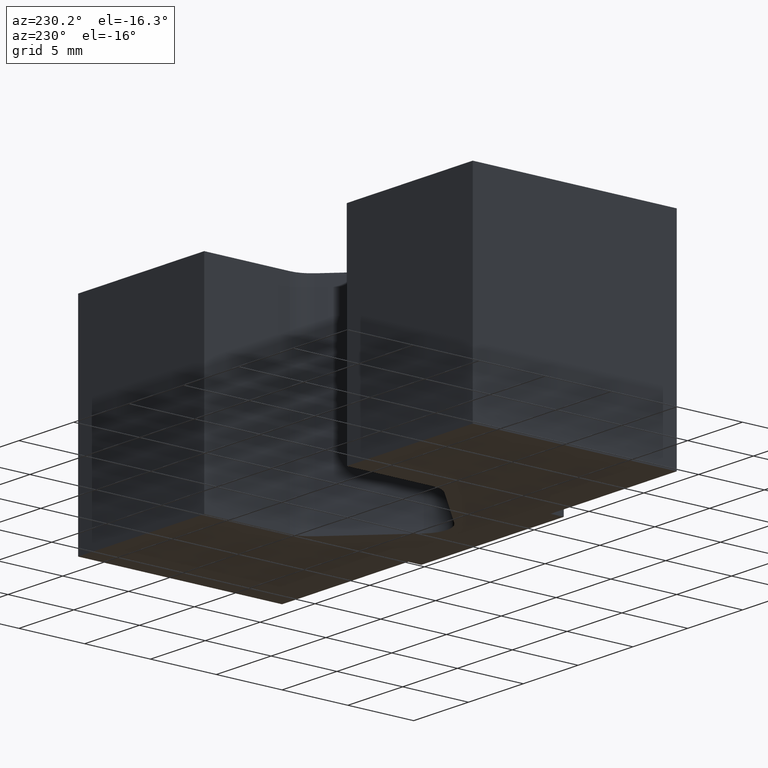
[diagram: clean part render]
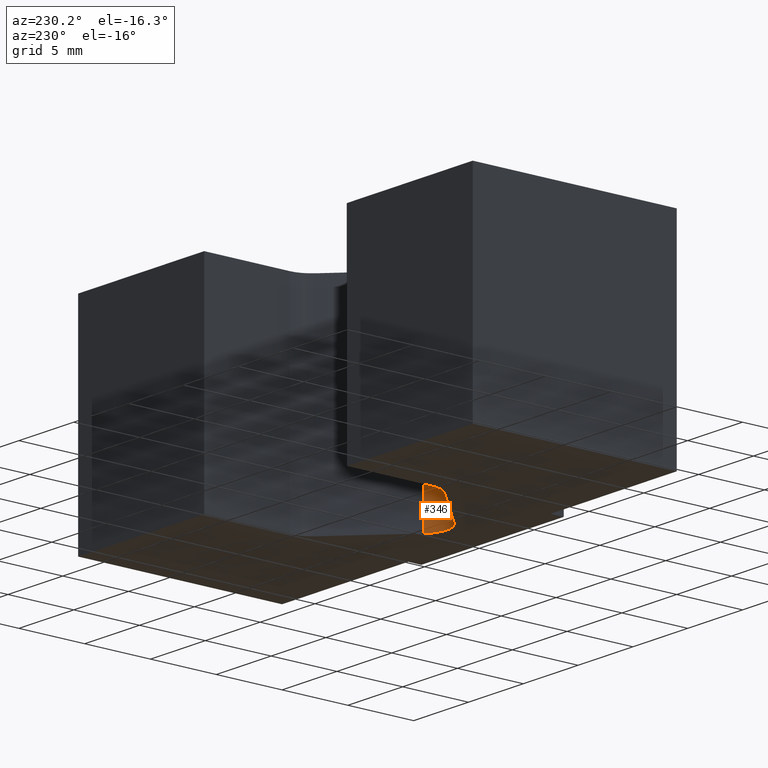
[diagram: same view with one face highlighted and labeled with its STEP entity id]
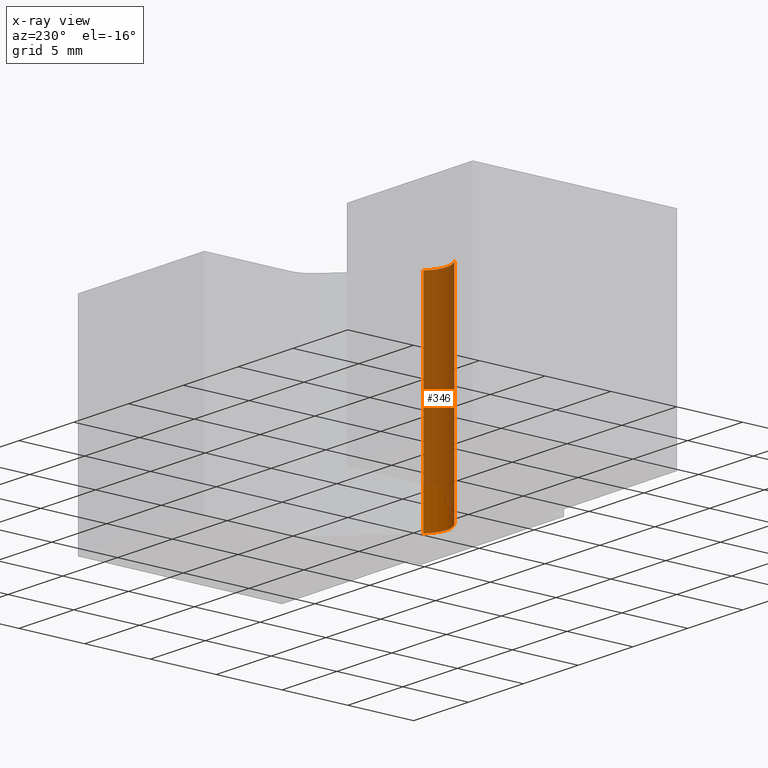
[diagram: x-ray of the same camera — body ghosted, the highlighted face saturated]
A machine part, auxiliary view. The second image highlights one B-rep face of the part: STEP entity #346.
The next image is the same camera in x-ray: the body ghosted, the highlighted face saturated — about 85% of this face is hidden behind the body in this view.
In plain terms, the highlighted cylindrical surface (edge-blend (fillet) strip) has radius 2 mm, axis along (0, 0, 1).
Its self-contained STEP definition (entity closure, byte-faithful):
#15=CYLINDRICAL_SURFACE('',#391,2.);
#29=FACE_OUTER_BOUND('',#47,.T.);
#47=EDGE_LOOP('',(#277,#278,#279,#280));
#56=CIRCLE('',#379,2.);
#59=CIRCLE('',#392,2.);
#91=LINE('',#564,#133);
#92=LINE('',#568,#134);
#133=VECTOR('',#461,10.);
#134=VECTOR('',#466,10.);
#156=VERTEX_POINT('',#516);
#157=VERTEX_POINT('',#518);
#170=VERTEX_POINT('',#562);
#171=VERTEX_POINT('',#566);
#188=EDGE_CURVE('',#157,#156,#56,.T.);
#211=EDGE_CURVE('',#170,#156,#91,.T.);
#212=EDGE_CURVE('',#170,#171,#59,.T.);
#213=EDGE_CURVE('',#171,#157,#92,.T.);
#277=ORIENTED_EDGE('',*,*,#212,.T.);
#278=ORIENTED_EDGE('',*,*,#213,.T.);
#279=ORIENTED_EDGE('',*,*,#188,.T.);
#280=ORIENTED_EDGE('',*,*,#211,.F.);
#346=ADVANCED_FACE('',(#29),#15,.F.);
#379=AXIS2_PLACEMENT_3D('',#519,#417,#418);
#391=AXIS2_PLACEMENT_3D('',#565,#462,#463);
#392=AXIS2_PLACEMENT_3D('',#567,#464,#465);
#417=DIRECTION('center_axis',(0.,0.,-1.));
#418=DIRECTION('ref_axis',(-0.707106781186548,-0.707106781186548,0.));
#461=DIRECTION('',(0.,0.,-1.));
#462=DIRECTION('center_axis',(0.,0.,1.));
#463=DIRECTION('ref_axis',(-0.707106781186548,-0.707106781186548,0.));
#464=DIRECTION('center_axis',(0.,0.,1.));
#465=DIRECTION('ref_axis',(-0.707106781186548,-0.707106781186548,0.));
#466=DIRECTION('',(0.,0.,-1.));
#516=CARTESIAN_POINT('',(-1.41421356237309,3.0857864376269,-8.));
#518=CARTESIAN_POINT('',(1.41421356237309,3.0857864376269,-8.));
#519=CARTESIAN_POINT('Origin',(0.,4.5,-8.));
#562=CARTESIAN_POINT('',(-1.41421356237309,3.0857864376269,8.));
#564=CARTESIAN_POINT('',(-1.41421356237309,3.0857864376269,0.));
#565=CARTESIAN_POINT('Origin',(0.,4.5,0.));
#566=CARTESIAN_POINT('',(1.41421356237309,3.0857864376269,8.));
#567=CARTESIAN_POINT('Origin',(0.,4.5,8.));
#568=CARTESIAN_POINT('',(1.41421356237309,3.0857864376269,0.));